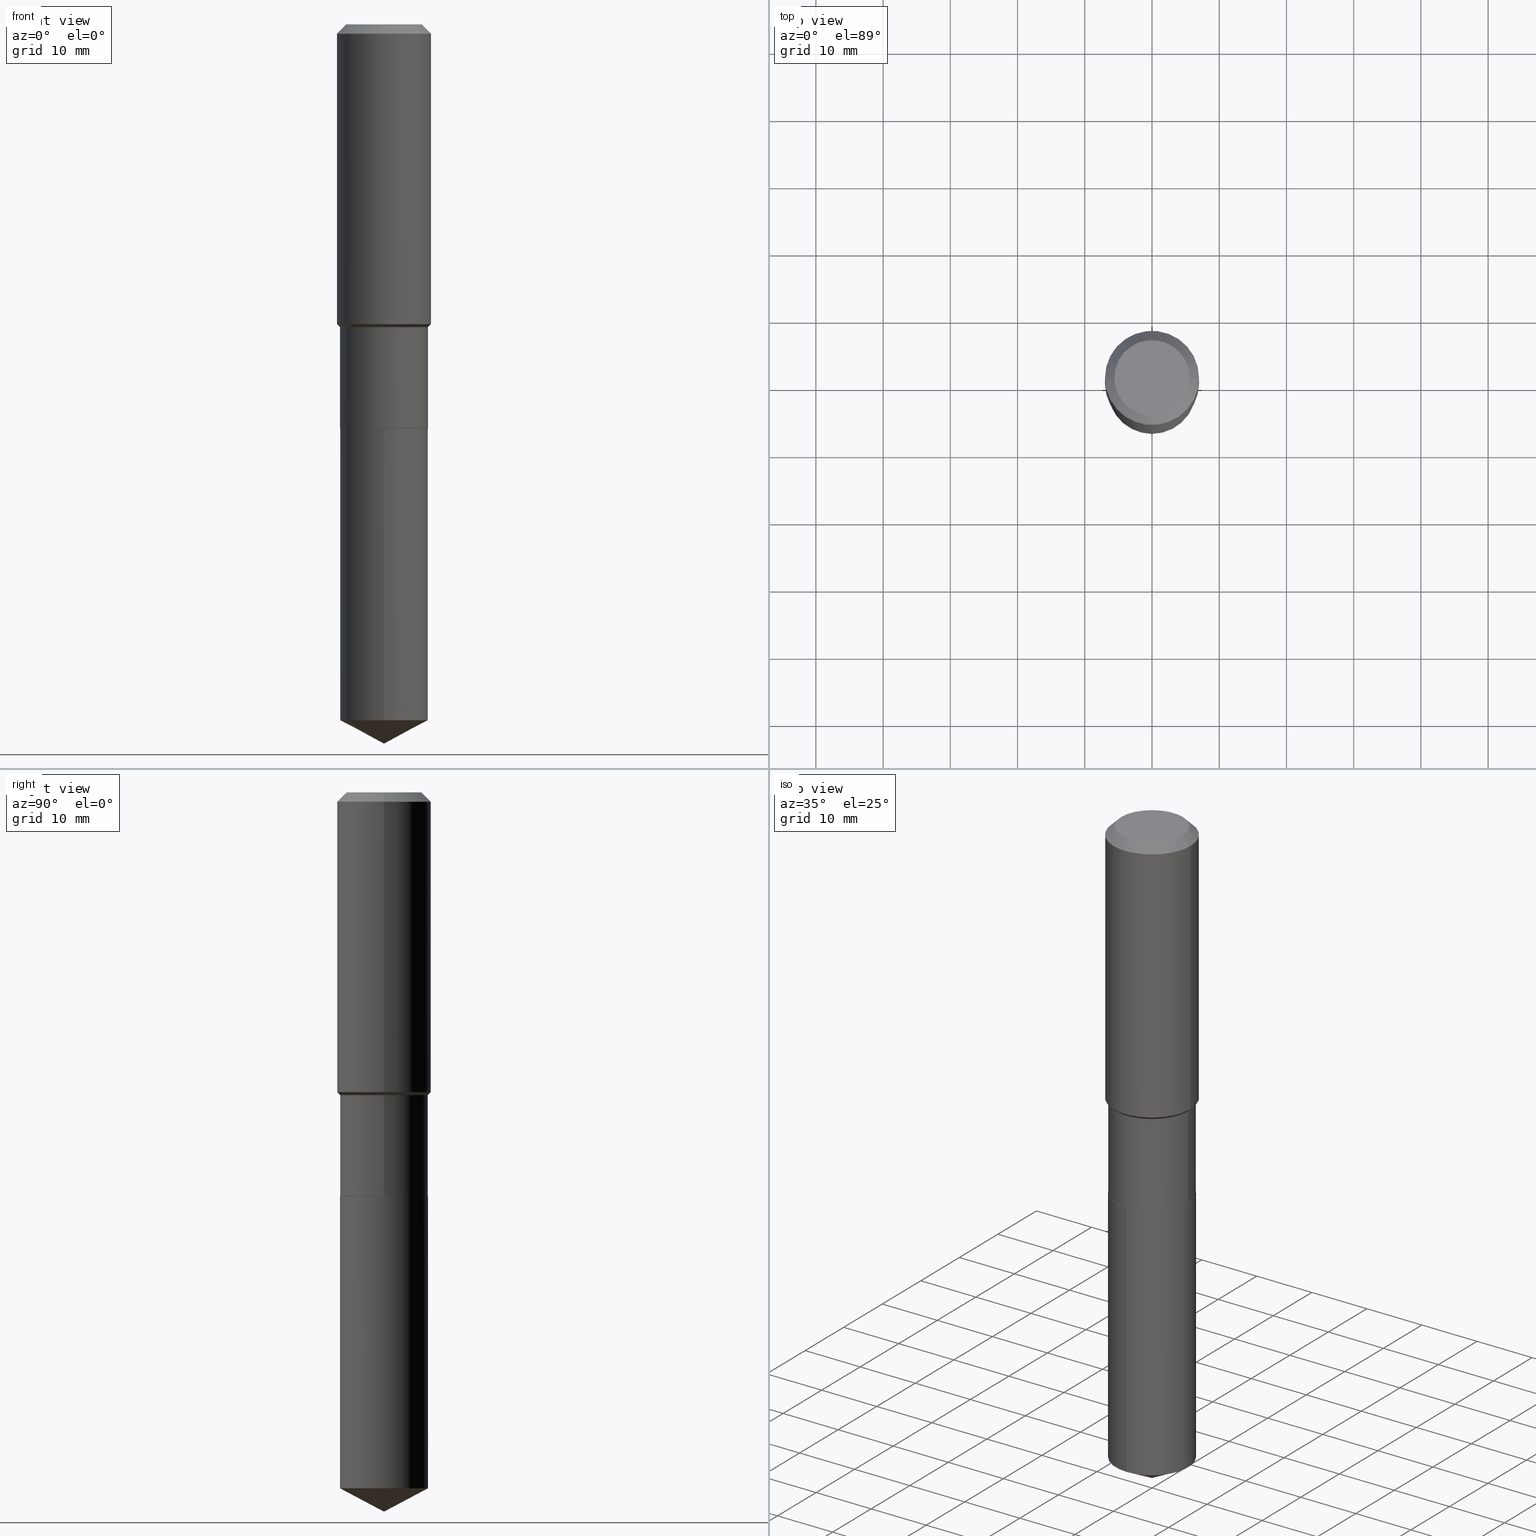
[diagram: canonical four-view strip — front | top / right | iso, engineering-drawing reading convention]
A machine part, canonical four-view strip (front | top / right | iso — engineering-drawing reading convention). The complete STEP part file that produces these views, byte-faithful:
ISO-10303-21;
HEADER;
FILE_DESCRIPTION (( 'STEP AP203' ),
    '1' );
FILE_NAME ('54629.STEP',
    '2024-04-24T15:16:39',
    ( '' ),
    ( '' ),
    'SwSTEP 2.0',
    'SolidWorks 2023',
    '' );
FILE_SCHEMA (( 'CONFIG_CONTROL_DESIGN' ));
ENDSEC;

DATA;
#1 = LINE ( 'NONE', #110, #404 ) ;
#2 = FACE_OUTER_BOUND ( 'NONE', #376, .T. ) ;
#3 = PERSON_AND_ORGANIZATION ( #445, #172 ) ;
#4 = FACE_OUTER_BOUND ( 'NONE', #333, .T. ) ;
#5 = CIRCLE ( 'NONE', #18, 0.2204800000000000093 ) ;
#6 = CALENDAR_DATE ( 2024, 24, 4 ) ;
#7 = ORIENTED_EDGE ( 'NONE', *, *, #134, .T. ) ;
#8 = CARTESIAN_POINT ( 'NONE',  ( 4.292531395496771171E-29, -6.128597194071374975E-15, -1.755300000000000304 ) ) ;
#9 = DIRECTION ( 'NONE',  ( -2.445468806185136597E-29, 3.491481338843145583E-15, 1.000000000000000000 ) ) ;
#10 = CONICAL_SURFACE ( 'NONE', #263, 0.2572999999999999732, 0.7853981633972775267 ) ;
#11 = CARTESIAN_POINT ( 'NONE',  ( 5.785979195434034596E-29, -8.260844847702884631E-15, -2.366000000000000547 ) ) ;
#12 = EDGE_CURVE ( 'NONE', #178, #260, #305, .T. ) ;
#13 = APPROVAL_DATE_TIME ( #52, #397 ) ;
#14 = CARTESIAN_POINT ( 'NONE',  ( 5.785979195434034596E-29, -8.260844847702884631E-15, -2.366000000000000547 ) ) ;
#15 = EDGE_CURVE ( 'NONE', #402, #178, #123, .T. ) ;
#16 = CARTESIAN_POINT ( 'NONE',  ( 5.784756461030941795E-29, -8.259099107033462339E-15, -2.365500000000000380 ) ) ;
#17 = AXIS2_PLACEMENT_3D ( 'NONE', #196, #355, #167 ) ;
#18 = AXIS2_PLACEMENT_3D ( 'NONE', #30, #303, #74 ) ;
#19 = ADVANCED_FACE ( 'NONE', ( #424 ), #64, .T. ) ;
#20 = DIRECTION ( 'NONE',  ( -2.438088387897960049E-29, 3.491481338843145188E-15, 1.000000000000000000 ) ) ;
#21 = ORIENTED_EDGE ( 'NONE', *, *, #382, .T. ) ;
#22 = DIRECTION ( 'NONE',  ( 6.273719981627760554E-15, 0.8829475928589289868, 0.4694715627858866425 ) ) ;
#23 = CARTESIAN_POINT ( 'NONE',  ( 1.831779172789595679E-15, 0.2577999999999917025, -2.366000000000000991 ) ) ;
#24 = EDGE_CURVE ( 'NONE', #67, #443, #81, .T. ) ;
#25 = VERTEX_POINT ( 'NONE', #186 ) ;
#26 = VECTOR ( 'NONE', #458, 39.37007874015748143 ) ;
#27 = VECTOR ( 'NONE', #61, 39.37007874015748143 ) ;
#28 = CARTESIAN_POINT ( 'NONE',  ( 0.000000000000000000, 0.000000000000000000, 0.000000000000000000 ) ) ;
#29 = ORIENTED_EDGE ( 'NONE', *, *, #375, .T. ) ;
#30 = CARTESIAN_POINT ( 'NONE',  ( -9.439721640706190018E-47, 1.347742071746724849E-32, 3.860086710912454339E-18 ) ) ;
#31 = EDGE_LOOP ( 'NONE', ( #371, #286, #40 ) ) ;
#32 = CYLINDRICAL_SURFACE ( 'NONE', #349, 0.2577999999999999736 ) ;
#33 = ORIENTED_EDGE ( 'NONE', *, *, #275, .T. ) ;
#34 = AXIS2_PLACEMENT_3D ( 'NONE', #16, #163, #206 ) ;
#35 = EDGE_CURVE ( 'NONE', #70, #157, #474, .T. ) ;
#36 = LINE ( 'NONE', #173, #247 ) ;
#37 = ORIENTED_EDGE ( 'NONE', *, *, #393, .F. ) ;
#38 = APPLICATION_PROTOCOL_DEFINITION ( 'international standard', 'config_control_design', 1994, #193 ) ;
#39 = ORIENTED_EDGE ( 'NONE', *, *, #12, .T. ) ;
#40 = ORIENTED_EDGE ( 'NONE', *, *, #453, .F. ) ;
#41 = APPROVAL_ROLE ( '' ) ;
#42 = CONICAL_SURFACE ( 'NONE', #17, 74.04434902938334062, 1.082104136236485381 ) ;
#43 = DIRECTION ( 'NONE',  ( 1.000000000000000000, -6.982962677686266711E-15, 0.000000000000000000 ) ) ;
#44 = LOCAL_TIME ( 11, 16, 39.00000000000000000, #118 ) ;
#45 = ORIENTED_EDGE ( 'NONE', *, *, #46, .F. ) ;
#46 = EDGE_CURVE ( 'NONE', #301, #25, #356, .T. ) ;
#47 = PERSON_AND_ORGANIZATION ( #445, #172 ) ;
#48 = CARTESIAN_POINT ( 'NONE',  ( 4.336060740246867168E-29, -6.190745561902783658E-15, -1.773100000000000565 ) ) ;
#49 = DATE_AND_TIME ( #129, #164 ) ;
#50 = DIRECTION ( 'NONE',  ( -2.445567243636616117E-29, 3.491340370809915190E-15, 1.000000000000000000 ) ) ;
#51 = AXIS2_PLACEMENT_3D ( 'NONE', #488, #441, #175 ) ;
#52 = DATE_AND_TIME ( #357, #59 ) ;
#53 = FACE_OUTER_BOUND ( 'NONE', #463, .T. ) ;
#54 = MANIFOLD_SOLID_BREP ( 'Body-Move/Copy2[1]', #394 ) ;
#55 = PERSON_AND_ORGANIZATION ( #445, #172 ) ;
#56 = CARTESIAN_POINT ( 'NONE',  ( -0.2572999999999999732, -6.429969161418035843E-15, -2.366000000000000547 ) ) ;
#57 = CARTESIAN_POINT ( 'NONE',  ( 1.030220065511256840E-28, -1.470762044607384763E-14, -4.212600000000000122 ) ) ;
#58 = CONICAL_SURFACE ( 'NONE', #221, 0.2756000000000000116, 0.7853981633974452814 ) ;
#59 = LOCAL_TIME ( 11, 16, 39.00000000000000000, #202 ) ;
#60 = CARTESIAN_POINT ( 'NONE',  ( -8.598021127879006181E-28, 1.227463913310365116E-13, 35.15747874015747954 ) ) ;
#61 = DIRECTION ( 'NONE',  ( 0.7071067811865453523, -7.319954787623248157E-15, -0.7071067811865496822 ) ) ;
#62 = FACE_OUTER_BOUND ( 'NONE', #373, .T. ) ;
#63 = ORIENTED_EDGE ( 'NONE', *, *, #411, .T. ) ;
#64 = CONICAL_SURFACE ( 'NONE', #228, 0.2577999999999999181, 0.7853981633974492782 ) ;
#65 =( GEOMETRIC_REPRESENTATION_CONTEXT ( 3 ) GLOBAL_UNCERTAINTY_ASSIGNED_CONTEXT ( ( #279 ) ) GLOBAL_UNIT_ASSIGNED_CONTEXT ( ( #454, #116, #386 ) ) REPRESENTATION_CONTEXT ( 'NONE', 'WORKASPACE' ) );
#66 = CARTESIAN_POINT ( 'NONE',  ( 5.785979195434034596E-29, -8.260844847702884631E-15, -2.366000000000000547 ) ) ;
#67 = VERTEX_POINT ( 'NONE', #234 ) ;
#68 = EDGE_CURVE ( 'NONE', #157, #70, #149, .T. ) ;
#69 = LINE ( 'NONE', #181, #297 ) ;
#70 = VERTEX_POINT ( 'NONE', #269 ) ;
#71 = DIRECTION ( 'NONE',  ( -0.7071067811865482389, 7.493145998870357316E-15, 0.7071067811865467956 ) ) ;
#72 = ORIENTED_EDGE ( 'NONE', *, *, #382, .F. ) ;
#73 = AXIS2_PLACEMENT_3D ( 'NONE', #159, #125, #128 ) ;
#74 = DIRECTION ( 'NONE',  ( 1.000000000000000000, -6.982962677686266711E-15, 4.876132675269083677E-29 ) ) ;
#75 = DIRECTION ( 'NONE',  ( 1.000000000000000000, -6.982962677686266711E-15, 0.000000000000000000 ) ) ;
#76 = APPROVAL_STATUS ( 'not_yet_approved' ) ;
#77 = DIRECTION ( 'NONE',  ( 1.000000000000000000, -6.982962677686267499E-15, 4.876176775795935793E-29 ) ) ;
#78 = CARTESIAN_POINT ( 'NONE',  ( 0.2577999999999999736, -1.005930688534098151E-14, -2.365500000000000380 ) ) ;
#79 = DIRECTION ( 'NONE',  ( -2.445468806185136597E-29, 3.491481338843145583E-15, 1.000000000000000000 ) ) ;
#80 = APPROVAL_STATUS ( 'not_yet_approved' ) ;
#81 = CIRCLE ( 'NONE', #343, 0.2577999999999999181 ) ;
#82 = CONICAL_SURFACE ( 'NONE', #414, 0.2572999999999999732, 0.7853981633972775267 ) ;
#83 = ORIENTED_EDGE ( 'NONE', *, *, #187, .F. ) ;
#84 = ADVANCED_FACE ( 'NONE', ( #184 ), #227, .T. ) ;
#85 = DIRECTION ( 'NONE',  ( 0.000000000000000000, 0.000000000000000000, 1.000000000000000000 ) ) ;
#86 = CARTESIAN_POINT ( 'NONE',  ( -0.2577999999999999181, 1.831779172789537697E-15, -1.268101466267714406E-29 ) ) ;
#87 = CC_DESIGN_PERSON_AND_ORGANIZATION_ASSIGNMENT ( #420, #226, ( #97 ) ) ;
#88 = CARTESIAN_POINT ( 'NONE',  ( -0.2578000000000000291, -5.393143161678585695E-15, -2.365500000000000380 ) ) ;
#89 = EDGE_CURVE ( 'NONE', #218, #67, #121, .T. ) ;
#90 = CARTESIAN_POINT ( 'NONE',  ( 0.2572999999999999732, -1.005756114467156079E-14, -2.366000000000000547 ) ) ;
#91 = VECTOR ( 'NONE', #189, 39.37007874015748143 ) ;
#92 = DIRECTION ( 'NONE',  ( -2.445567243636616397E-29, 3.491340370809915190E-15, 1.000000000000000000 ) ) ;
#93 = CARTESIAN_POINT ( 'NONE',  ( 5.785979195434034596E-29, -8.260844847702884631E-15, -2.366000000000000547 ) ) ;
#94 = DIRECTION ( 'NONE',  ( -2.445567243636616117E-29, 3.491340370809915190E-15, 1.000000000000000000 ) ) ;
#95 = DIMENSIONAL_EXPONENTS ( 1.000000000000000000, 0.000000000000000000, 0.000000000000000000, 0.000000000000000000, 0.000000000000000000, 0.000000000000000000, 0.000000000000000000 ) ;
#96 = AXIS2_PLACEMENT_3D ( 'NONE', #66, #177, #293 ) ;
#97 = PRODUCT ( '54629', '54629', '', ( #310 ) ) ;
#98 = CARTESIAN_POINT ( 'NONE',  ( -0.2577999999999999181, -4.358966389113245961E-15, -1.773100000000000565 ) ) ;
#99 = ORIENTED_EDGE ( 'NONE', *, *, #281, .T. ) ;
#100 = CARTESIAN_POINT ( 'NONE',  ( 0.000000000000000000, 0.000000000000000000, 0.000000000000000000 ) ) ;
#101 = ORIENTED_EDGE ( 'NONE', *, *, #486, .F. ) ;
#102 = LINE ( 'NONE', #23, #135 ) ;
#103 = EDGE_LOOP ( 'NONE', ( #39, #209, #448, #360 ) ) ;
#104 = AXIS2_PLACEMENT_3D ( 'NONE', #14, #50, #245 ) ;
#105 = DIRECTION ( 'NONE',  ( -2.445468806185136597E-29, 3.491481338843145583E-15, 1.000000000000000000 ) ) ;
#106 = APPROVAL ( #76, 'UNSPECIFIED' ) ;
#107 = ORIENTED_EDGE ( 'NONE', *, *, #453, .T. ) ;
#108 = CARTESIAN_POINT ( 'NONE',  ( 4.336060740246867168E-29, -6.190745561902783658E-15, -1.773100000000000565 ) ) ;
#109 = EDGE_LOOP ( 'NONE', ( #257, #289, #220, #363 ) ) ;
#110 = CARTESIAN_POINT ( 'NONE',  ( -0.2756000000000000116, 1.732054062573300039E-15, -0.05512000000000035621 ) ) ;
#111 = ORIENTED_EDGE ( 'NONE', *, *, #464, .T. ) ;
#112 = APPROVAL_ROLE ( '' ) ;
#113 = CIRCLE ( 'NONE', #313, 0.2577999999999999181 ) ;
#114 = EDGE_LOOP ( 'NONE', ( #162, #107, #413, #405 ) ) ;
#115 = CC_DESIGN_DATE_AND_TIME_ASSIGNMENT ( #377, #233, ( #183 ) ) ;
#116 =( NAMED_UNIT ( * ) PLANE_ANGLE_UNIT ( ) SI_UNIT ( $, .RADIAN. ) );
#117 = DIRECTION ( 'NONE',  ( 1.000000000000000000, -6.982962677686267499E-15, 0.000000000000000000 ) ) ;
#118 = COORDINATED_UNIVERSAL_TIME_OFFSET ( 5, 0, .BEHIND. ) ;
#119 = ORIENTED_EDGE ( 'NONE', *, *, #201, .T. ) ;
#120 = CIRCLE ( 'NONE', #214, 0.2204800000000000093 ) ;
#121 = LINE ( 'NONE', #86, #179 ) ;
#122 = COORDINATED_UNIVERSAL_TIME_OFFSET ( 5, 0, .BEHIND. ) ;
#123 = LINE ( 'NONE', #148, #26 ) ;
#124 = ADVANCED_FACE ( 'NONE', ( #2 ), #10, .T. ) ;
#125 = DIRECTION ( 'NONE',  ( 2.445468806185136597E-29, -3.491481338843145583E-15, -1.000000000000000000 ) ) ;
#126 = CARTESIAN_POINT ( 'NONE',  ( -0.2204800000000000093, 1.635828836874783961E-15, 3.860086710901350968E-18 ) ) ;
#127 = CONICAL_SURFACE ( 'NONE', #254, 74.04434902938334062, 1.082104136236485381 ) ;
#128 = DIRECTION ( 'NONE',  ( -1.000000000000000000, 6.982962677686269077E-15, 0.000000000000000000 ) ) ;
#129 = CALENDAR_DATE ( 2024, 24, 4 ) ;
#130 = LINE ( 'NONE', #276, #194 ) ;
#131 = ADVANCED_FACE ( 'NONE', ( #346 ), #58, .T. ) ;
#132 = CYLINDRICAL_SURFACE ( 'NONE', #104, 0.2577999999999999736 ) ;
#133 = CIRCLE ( 'NONE', #34, 0.2577999999999999736 ) ;
#134 = EDGE_CURVE ( 'NONE', #157, #274, #342, .T. ) ;
#135 = VECTOR ( 'NONE', #484, 39.37007874015748143 ) ;
#136 = DIRECTION ( 'NONE',  ( 1.000000000000000000, -6.982962677686266711E-15, 4.876132675269083677E-29 ) ) ;
#137 = ORIENTED_EDGE ( 'NONE', *, *, #317, .F. ) ;
#138 = ADVANCED_FACE ( 'NONE', ( #4 ), #345, .F. ) ;
#139 = FACE_OUTER_BOUND ( 'NONE', #399, .T. ) ;
#140 = DIRECTION ( 'NONE',  ( 1.000000000000000000, -6.982962677686267499E-15, 4.876176775795936353E-29 ) ) ;
#141 = ORIENTED_EDGE ( 'NONE', *, *, #225, .T. ) ;
#142 = AXIS2_PLACEMENT_3D ( 'NONE', #337, #398, #219 ) ;
#143 = CARTESIAN_POINT ( 'NONE',  ( 5.785979195434034596E-29, -8.260844847702884631E-15, -2.366000000000000547 ) ) ;
#144 = ORIENTED_EDGE ( 'NONE', *, *, #46, .T. ) ;
#145 = ORIENTED_EDGE ( 'NONE', *, *, #171, .F. ) ;
#146 = ADVANCED_FACE ( 'NONE', ( #322 ), #127, .T. ) ;
#147 = DIRECTION ( 'NONE',  ( 1.000000000000000000, 0.000000000000000000, 0.000000000000000000 ) ) ;
#148 = CARTESIAN_POINT ( 'NONE',  ( 1.030173076452320861E-28, -1.470828750680709365E-14, -4.212600000000000122 ) ) ;
#149 = CIRCLE ( 'NONE', #320, 0.2756000000000002337 ) ;
#150 = COORDINATED_UNIVERSAL_TIME_OFFSET ( 5, 0, .BEHIND. ) ;
#151 = AXIS2_PLACEMENT_3D ( 'NONE', #252, #403, #368 ) ;
#152 = ORIENTED_EDGE ( 'NONE', *, *, #12, .F. ) ;
#153 = DIRECTION ( 'NONE',  ( -2.445567243636616117E-29, 3.491340370809915190E-15, 1.000000000000000000 ) ) ;
#154 = CALENDAR_DATE ( 2024, 24, 4 ) ;
#155 = DIRECTION ( 'NONE',  ( -2.445468806185136597E-29, 3.491481338843145583E-15, 1.000000000000000000 ) ) ;
#156 = AXIS2_PLACEMENT_3D ( 'NONE', #266, #153, #273 ) ;
#157 = VERTEX_POINT ( 'NONE', #471 ) ;
#158 = PERSON_AND_ORGANIZATION ( #445, #172 ) ;
#159 = CARTESIAN_POINT ( 'NONE',  ( 1.347942405969256063E-30, -1.924504513970354330E-16, -0.05512000000000035621 ) ) ;
#160 = ADVANCED_FACE ( 'NONE', ( #323 ), #132, .T. ) ;
#161 = CARTESIAN_POINT ( 'NONE',  ( -0.2572999999999999732, -6.432618388592147044E-15, -2.366000000000000547 ) ) ;
#162 = ORIENTED_EDGE ( 'NONE', *, *, #302, .F. ) ;
#163 = DIRECTION ( 'NONE',  ( -2.445468806185136597E-29, 3.491481338843145583E-15, 1.000000000000000000 ) ) ;
#164 = LOCAL_TIME ( 11, 16, 39.00000000000000000, #122 ) ;
#165 = ADVANCED_FACE ( 'NONE', ( #316 ), #42, .T. ) ;
#166 = FACE_OUTER_BOUND ( 'NONE', #199, .T. ) ;
#167 = DIRECTION ( 'NONE',  ( -6.982962677686265133E-15, -1.000000000000000000, 3.541896320645570335E-15 ) ) ;
#168 = FACE_OUTER_BOUND ( 'NONE', #262, .T. ) ;
#169 = ORIENTED_EDGE ( 'NONE', *, *, #317, .T. ) ;
#170 = AXIS2_PLACEMENT_3D ( 'NONE', #429, #20, #388 ) ;
#171 = EDGE_CURVE ( 'NONE', #70, #418, #431, .T. ) ;
#172 = ORGANIZATION ( 'UNSPECIFIED', 'UNSPECIFIED', '' ) ;
#173 = CARTESIAN_POINT ( 'NONE',  ( 0.2577999999999999181, -7.990953340210302036E-15, -1.773100000000000565 ) ) ;
#174 = EDGE_LOOP ( 'NONE', ( #296, #63, #212, #466 ) ) ;
#175 = DIRECTION ( 'NONE',  ( 1.000000000000000000, -6.982962677686267499E-15, 4.876176775795936353E-29 ) ) ;
#176 = ORIENTED_EDGE ( 'NONE', *, *, #331, .T. ) ;
#177 = DIRECTION ( 'NONE',  ( -2.445567243636616117E-29, 3.491340370809915190E-15, 1.000000000000000000 ) ) ;
#178 = VERTEX_POINT ( 'NONE', #350 ) ;
#179 = VECTOR ( 'NONE', #232, 39.37007874015748143 ) ;
#180 = CC_DESIGN_APPROVAL ( #397, ( #485 ) ) ;
#181 = CARTESIAN_POINT ( 'NONE',  ( 0.2577999999999999181, -1.800207778307519167E-15, 1.257078372800191925E-29 ) ) ;
#182 = ORIENTED_EDGE ( 'NONE', *, *, #68, .F. ) ;
#183 = PRODUCT_DEFINITION ( 'UNKNOWN', '', #336, #470 ) ;
#184 = FACE_OUTER_BOUND ( 'NONE', #330, .T. ) ;
#185 = PERSON_AND_ORGANIZATION_ROLE ( 'creator' ) ;
#186 = CARTESIAN_POINT ( 'NONE',  ( 0.2572999999999999732, -1.005756114467156079E-14, -2.366000000000000547 ) ) ;
#187 = EDGE_CURVE ( 'NONE', #218, #477, #133, .T. ) ;
#188 = PERSON_AND_ORGANIZATION ( #445, #172 ) ;
#189 = DIRECTION ( 'NONE',  ( -2.445468806185136877E-29, 3.491481338843145188E-15, 1.000000000000000000 ) ) ;
#190 = DIRECTION ( 'NONE',  ( 1.000000000000000000, -6.982962677686265922E-15, 0.000000000000000000 ) ) ;
#191 = CALENDAR_DATE ( 2024, 24, 4 ) ;
#192 = CARTESIAN_POINT ( 'NONE',  ( 4.336060740246867168E-29, -6.190745561902783658E-15, -1.773100000000000565 ) ) ;
#193 = APPLICATION_CONTEXT ( 'configuration controlled 3d designs of mechanical parts and assemblies' ) ;
#194 = VECTOR ( 'NONE', #92, 39.37007874015748143 ) ;
#195 = AXIS2_PLACEMENT_3D ( 'NONE', #359, #473, #391 ) ;
#196 = CARTESIAN_POINT ( 'NONE',  ( -8.598021127879006181E-28, 1.227463913310365116E-13, 35.15747874015747954 ) ) ;
#197 = DIRECTION ( 'NONE',  ( -0.7071067811864267805, 7.493145998869918709E-15, 0.7071067811866682540 ) ) ;
#198 = CC_DESIGN_PERSON_AND_ORGANIZATION_ASSIGNMENT ( #158, #460, ( #485 ) ) ;
#199 = EDGE_LOOP ( 'NONE', ( #299, #111 ) ) ;
#200 = DIRECTION ( 'NONE',  ( -2.445468806185136877E-29, 3.491481338843145188E-15, 1.000000000000000000 ) ) ;
#201 = EDGE_CURVE ( 'NONE', #353, #369, #295, .T. ) ;
#202 = COORDINATED_UNIVERSAL_TIME_OFFSET ( 5, 0, .BEHIND. ) ;
#203 = PLANE ( 'NONE',  #240 ) ;
#204 = VECTOR ( 'NONE', #200, 39.37007874015748143 ) ;
#205 = DATE_TIME_ROLE ( 'classification_date' ) ;
#206 = DIRECTION ( 'NONE',  ( 1.000000000000000000, -6.982962677686264344E-15, 0.000000000000000000 ) ) ;
#207 = DIRECTION ( 'NONE',  ( 1.000000000000000000, -6.982962677686267499E-15, 4.876176775795935793E-29 ) ) ;
#208 = ADVANCED_FACE ( 'NONE', ( #462 ), #284, .T. ) ;
#209 = ORIENTED_EDGE ( 'NONE', *, *, #302, .T. ) ;
#210 = MANIFOLD_SOLID_BREP ( 'Body-Move/Copy2[2]', #467 ) ;
#211 = DIRECTION ( 'NONE',  ( -2.445468806185136597E-29, 3.491481338843145583E-15, 1.000000000000000000 ) ) ;
#212 = ORIENTED_EDGE ( 'NONE', *, *, #486, .T. ) ;
#213 = AXIS2_PLACEMENT_3D ( 'NONE', #11, #361, #425 ) ;
#214 = AXIS2_PLACEMENT_3D ( 'NONE', #409, #259, #136 ) ;
#215 = CARTESIAN_POINT ( 'NONE',  ( 5.785979195434034596E-29, -8.260844847702884631E-15, -2.366000000000000547 ) ) ;
#216 = VERTEX_POINT ( 'NONE', #126 ) ;
#217 = CARTESIAN_POINT ( 'NONE',  ( 4.336060740246867168E-29, -6.190745561902783658E-15, -1.773100000000000565 ) ) ;
#218 = VERTEX_POINT ( 'NONE', #88 ) ;
#219 = DIRECTION ( 'NONE',  ( 1.000000000000000000, -6.982962677686264344E-15, 0.000000000000000000 ) ) ;
#220 = ORIENTED_EDGE ( 'NONE', *, *, #393, .T. ) ;
#221 = AXIS2_PLACEMENT_3D ( 'NONE', #451, #224, #379 ) ;
#222 = ORIENTED_EDGE ( 'NONE', *, *, #35, .F. ) ;
#223 = PERSON_AND_ORGANIZATION ( #445, #172 ) ;
#224 = DIRECTION ( 'NONE',  ( 2.445468806185136597E-29, -3.491481338843145583E-15, -1.000000000000000000 ) ) ;
#225 = EDGE_CURVE ( 'NONE', #301, #218, #430, .T. ) ;
#226 = PERSON_AND_ORGANIZATION_ROLE ( 'design_owner' ) ;
#227 = CYLINDRICAL_SURFACE ( 'NONE', #229, 0.2756000000000001227 ) ;
#228 = AXIS2_PLACEMENT_3D ( 'NONE', #192, #308, #455 ) ;
#229 = AXIS2_PLACEMENT_3D ( 'NONE', #340, #155, #77 ) ;
#230 = DATE_AND_TIME ( #191, #321 ) ;
#231 = APPROVAL_PERSON_ORGANIZATION ( #47, #449, #112 ) ;
#232 = DIRECTION ( 'NONE',  ( -2.445468806185136877E-29, 3.491481338843145188E-15, 1.000000000000000000 ) ) ;
#233 = DATE_TIME_ROLE ( 'creation_date' ) ;
#234 = CARTESIAN_POINT ( 'NONE',  ( -0.2577999999999999181, -5.393143161678585695E-15, -1.773100000000000565 ) ) ;
#235 = EDGE_CURVE ( 'NONE', #25, #301, #348, .T. ) ;
#236 = DIRECTION ( 'NONE',  ( 1.000000000000000000, -6.982962677686266711E-15, 0.000000000000000000 ) ) ;
#237 = APPLICATION_CONTEXT ( 'configuration controlled 3d designs of mechanical parts and assemblies' ) ;
#238 = SECURITY_CLASSIFICATION_LEVEL ( 'unclassified' ) ;
#239 = CC_DESIGN_DATE_AND_TIME_ASSIGNMENT ( #49, #205, ( #485 ) ) ;
#240 = AXIS2_PLACEMENT_3D ( 'NONE', #324, #390, #242 ) ;
#241 = DIRECTION ( 'NONE',  ( -2.445468806185136597E-29, 3.491481338843145583E-15, 1.000000000000000000 ) ) ;
#242 = DIRECTION ( 'NONE',  ( -1.000000000000000000, 6.982962677686265922E-15, -4.876176775795935793E-29 ) ) ;
#243 = EDGE_CURVE ( 'NONE', #178, #353, #130, .T. ) ;
#244 = LINE ( 'NONE', #57, #365 ) ;
#245 = DIRECTION ( 'NONE',  ( -6.982962677686265922E-15, -1.000000000000000000, 3.179031800229941890E-15 ) ) ;
#246 = AXIS2_PLACEMENT_3D ( 'NONE', #8, #385, #416 ) ;
#247 = VECTOR ( 'NONE', #478, 39.37007874015748143 ) ;
#248 = CARTESIAN_POINT ( 'NONE',  ( 0.2756000000000000116, -2.083203699582869812E-15, -0.05512000000000035621 ) ) ;
#249 = PRODUCT_RELATED_PRODUCT_CATEGORY ( 'detail', '', ( #97 ) ) ;
#250 = LINE ( 'NONE', #98, #428 ) ;
#251 = EDGE_LOOP ( 'NONE', ( #29, #169, #222, #335 ) ) ;
#252 = CARTESIAN_POINT ( 'NONE',  ( 9.966738292112629474E-29, -1.422937957225190381E-14, -4.075525308517671697 ) ) ;
#253 = EDGE_LOOP ( 'NONE', ( #446, #440, #309, #311 ) ) ;
#254 = AXIS2_PLACEMENT_3D ( 'NONE', #60, #94, #280 ) ;
#255 = CC_DESIGN_APPROVAL ( #106, ( #183 ) ) ;
#256 = DIRECTION ( 'NONE',  ( 1.000000000000000000, -6.982962677686265922E-15, 0.000000000000000000 ) ) ;
#257 = ORIENTED_EDGE ( 'NONE', *, *, #89, .F. ) ;
#258 = EDGE_CURVE ( 'NONE', #402, #260, #244, .T. ) ;
#259 = DIRECTION ( 'NONE',  ( -2.445468806185136597E-29, 3.491481338843145583E-15, 1.000000000000000000 ) ) ;
#260 = VERTEX_POINT ( 'NONE', #282 ) ;
#261 = DIRECTION ( 'NONE',  ( -0.7071067811865453523, 2.468850131082234184E-15, -0.7071067811865496822 ) ) ;
#262 = EDGE_LOOP ( 'NONE', ( #137, #479, #319, #182 ) ) ;
#263 = AXIS2_PLACEMENT_3D ( 'NONE', #347, #9, #43 ) ;
#264 = AXIS2_PLACEMENT_3D ( 'NONE', #28, #481, #140 ) ;
#265 = COORDINATED_UNIVERSAL_TIME_OFFSET ( 5, 0, .BEHIND. ) ;
#266 = CARTESIAN_POINT ( 'NONE',  ( 9.966738292112629474E-29, -1.422937957225190381E-14, -4.075525308517671697 ) ) ;
#267 = APPLICATION_PROTOCOL_DEFINITION ( 'international standard', 'config_control_design', 1994, #237 ) ;
#268 = CC_DESIGN_PERSON_AND_ORGANIZATION_ASSIGNMENT ( #188, #450, ( #183 ) ) ;
#269 = CARTESIAN_POINT ( 'NONE',  ( 0.2756000000000002337, -8.053101708041710718E-15, -1.755300000000000304 ) ) ;
#270 = CARTESIAN_POINT ( 'NONE',  ( 0.2204800000000000093, -1.797903149065768707E-15, 3.860086710924123164E-18 ) ) ;
#271 = ORIENTED_EDGE ( 'NONE', *, *, #35, .T. ) ;
#272 = AXIS2_PLACEMENT_3D ( 'NONE', #300, #384, #380 ) ;
#273 = DIRECTION ( 'NONE',  ( -6.982962677686265922E-15, -1.000000000000000000, 4.238709066973255853E-15 ) ) ;
#274 = VERTEX_POINT ( 'NONE', #396 ) ;
#275 = EDGE_CURVE ( 'NONE', #25, #477, #426, .T. ) ;
#276 = CARTESIAN_POINT ( 'NONE',  ( -1.800207778307461580E-15, -0.2578000000000082448, -2.365999999999999659 ) ) ;
#277 = CIRCLE ( 'NONE', #96, 0.2577999999999999736 ) ;
#278 = DIRECTION ( 'NONE',  ( 0.7071067811864267805, -2.468850131080992517E-15, 0.7071067811866682540 ) ) ;
#279 = UNCERTAINTY_MEASURE_WITH_UNIT (LENGTH_MEASURE( 1.000000000000000082E-05 ), #454, 'distance_accuracy_value', 'NONE');
#280 = DIRECTION ( 'NONE',  ( -6.982962677686265133E-15, -1.000000000000000000, 3.541896320645570335E-15 ) ) ;
#281 = EDGE_CURVE ( 'NONE', #274, #418, #327, .T. ) ;
#282 = CARTESIAN_POINT ( 'NONE',  ( 1.831779172789638277E-15, 0.2577999999999858183, -4.075525308517672585 ) ) ;
#283 = FACE_OUTER_BOUND ( 'NONE', #253, .T. ) ;
#284 = CONICAL_SURFACE ( 'NONE', #73, 0.2756000000000000116, 0.7853981633974452814 ) ;
#285 = AXIS2_PLACEMENT_3D ( 'NONE', #100, #400, #207 ) ;
#286 = ORIENTED_EDGE ( 'NONE', *, *, #15, .T. ) ;
#287 = ADVANCED_FACE ( 'NONE', ( #166 ), #203, .F. ) ;
#288 = CARTESIAN_POINT ( 'NONE',  ( 1.831779172789637883E-15, 0.2577999999999917025, -2.366000000000000991 ) ) ;
#289 = ORIENTED_EDGE ( 'NONE', *, *, #187, .T. ) ;
#290 = CC_DESIGN_PERSON_AND_ORGANIZATION_ASSIGNMENT ( #3, #307, ( #336 ) ) ;
#291 = DIRECTION ( 'NONE',  ( 1.000000000000000000, -6.982962677686266711E-15, 0.000000000000000000 ) ) ;
#292 = ORIENTED_EDGE ( 'NONE', *, *, #258, .T. ) ;
#293 = DIRECTION ( 'NONE',  ( -6.982962677686265922E-15, -1.000000000000000000, 3.179031800229941890E-15 ) ) ;
#294 = ADVANCED_FACE ( 'NONE', ( #53 ), #352, .F. ) ;
#295 = CIRCLE ( 'NONE', #213, 0.2577999999999999736 ) ;
#296 = ORIENTED_EDGE ( 'NONE', *, *, #464, .F. ) ;
#297 = VECTOR ( 'NONE', #370, 39.37007874015748143 ) ;
#298 = CARTESIAN_POINT ( 'NONE',  ( -1.800207778307461580E-15, -0.2578000000000082448, -2.365999999999999659 ) ) ;
#299 = ORIENTED_EDGE ( 'NONE', *, *, #325, .T. ) ;
#300 = CARTESIAN_POINT ( 'NONE',  ( 1.347942405969256063E-30, -1.924504513970354330E-16, -0.05512000000000035621 ) ) ;
#301 = VERTEX_POINT ( 'NONE', #56 ) ;
#302 = EDGE_CURVE ( 'NONE', #260, #369, #102, .T. ) ;
#303 = DIRECTION ( 'NONE',  ( -2.445468806185136597E-29, 3.491481338843145583E-15, 1.000000000000000000 ) ) ;
#304 = DIRECTION ( 'NONE',  ( -2.445468806185136597E-29, 3.491481338843145583E-15, 1.000000000000000000 ) ) ;
#305 = CIRCLE ( 'NONE', #156, 0.2577999999999999736 ) ;
#306 = CIRCLE ( 'NONE', #272, 0.2756000000000000116 ) ;
#307 = PERSON_AND_ORGANIZATION_ROLE ( 'design_supplier' ) ;
#308 = DIRECTION ( 'NONE',  ( -2.445468806185136597E-29, 3.491481338843145583E-15, 1.000000000000000000 ) ) ;
#309 = ORIENTED_EDGE ( 'NONE', *, *, #171, .T. ) ;
#310 = MECHANICAL_CONTEXT ( 'NONE', #237, 'mechanical' ) ;
#311 = ORIENTED_EDGE ( 'NONE', *, *, #281, .F. ) ;
#312 = EDGE_CURVE ( 'NONE', #443, #70, #36, .T. ) ;
#313 = AXIS2_PLACEMENT_3D ( 'NONE', #217, #362, #256 ) ;
#314 = CARTESIAN_POINT ( 'NONE',  ( 5.785979195434034596E-29, -8.260844847702884631E-15, -2.366000000000000547 ) ) ;
#315 = SHAPE_DEFINITION_REPRESENTATION ( #480, #406 ) ;
#316 = FACE_OUTER_BOUND ( 'NONE', #31, .T. ) ;
#317 = EDGE_CURVE ( 'NONE', #67, #157, #250, .T. ) ;
#318 = DIRECTION ( 'NONE',  ( -2.445468806185136597E-29, 3.491481338843145583E-15, 1.000000000000000000 ) ) ;
#319 = ORIENTED_EDGE ( 'NONE', *, *, #312, .T. ) ;
#320 = AXIS2_PLACEMENT_3D ( 'NONE', #457, #79, #117 ) ;
#321 = LOCAL_TIME ( 11, 16, 39.00000000000000000, #265 ) ;
#322 = FACE_OUTER_BOUND ( 'NONE', #408, .T. ) ;
#323 = FACE_OUTER_BOUND ( 'NONE', #114, .T. ) ;
#324 = CARTESIAN_POINT ( 'NONE',  ( -4.719860820353095009E-47, 6.738710358733624243E-33, 1.930043355456227170E-18 ) ) ;
#325 = EDGE_CURVE ( 'NONE', #216, #482, #120, .T. ) ;
#326 = FACE_OUTER_BOUND ( 'NONE', #109, .T. ) ;
#327 = CIRCLE ( 'NONE', #344, 0.2756000000000000116 ) ;
#328 = ORIENTED_EDGE ( 'NONE', *, *, #235, .F. ) ;
#329 = CYLINDRICAL_SURFACE ( 'NONE', #285, 0.2756000000000001227 ) ;
#330 = EDGE_LOOP ( 'NONE', ( #271, #7, #101, #145 ) ) ;
#331 = EDGE_CURVE ( 'NONE', #369, #353, #277, .T. ) ;
#332 = DIRECTION ( 'NONE',  ( 1.000000000000000000, -6.982962677686265922E-15, 0.000000000000000000 ) ) ;
#333 = EDGE_LOOP ( 'NONE', ( #328, #45 ) ) ;
#334 = DIRECTION ( 'NONE',  ( -2.445567243636616117E-29, 3.491340370809915190E-15, 1.000000000000000000 ) ) ;
#335 = ORIENTED_EDGE ( 'NONE', *, *, #312, .F. ) ;
#336 = PRODUCT_DEFINITION_FORMATION_WITH_SPECIFIED_SOURCE ( 'ANY', '', #97, .NOT_KNOWN. ) ;
#337 = CARTESIAN_POINT ( 'NONE',  ( 5.784756461030941795E-29, -8.259099107033462339E-15, -2.365500000000000380 ) ) ;
#338 = ORIENTED_EDGE ( 'NONE', *, *, #225, .F. ) ;
#339 = PERSON_AND_ORGANIZATION ( #445, #172 ) ;
#340 = CARTESIAN_POINT ( 'NONE',  ( 0.000000000000000000, 0.000000000000000000, 0.000000000000000000 ) ) ;
#341 = DATE_AND_TIME ( #154, #374 ) ;
#342 = LINE ( 'NONE', #381, #91 ) ;
#343 = AXIS2_PLACEMENT_3D ( 'NONE', #48, #304, #190 ) ;
#344 = AXIS2_PLACEMENT_3D ( 'NONE', #472, #241, #392 ) ;
#345 = PLANE ( 'NONE',  #170 ) ;
#346 = FACE_OUTER_BOUND ( 'NONE', #174, .T. ) ;
#347 = CARTESIAN_POINT ( 'NONE',  ( 5.785979195434034596E-29, -8.260844847702884631E-15, -2.366000000000000547 ) ) ;
#348 = CIRCLE ( 'NONE', #412, 0.2572999999999999732 ) ;
#349 = AXIS2_PLACEMENT_3D ( 'NONE', #215, #334, #444 ) ;
#350 = CARTESIAN_POINT ( 'NONE',  ( -1.800207778307420165E-15, -0.2578000000000142955, -4.075525308517669920 ) ) ;
#351 = ADVANCED_FACE ( 'NONE', ( #139 ), #476, .T. ) ;
#352 = PLANE ( 'NONE',  #195 ) ;
#353 = VERTEX_POINT ( 'NONE', #298 ) ;
#354 = APPROVAL_ROLE ( '' ) ;
#355 = DIRECTION ( 'NONE',  ( -2.445567243636616117E-29, 3.491340370809915190E-15, 1.000000000000000000 ) ) ;
#356 = CIRCLE ( 'NONE', #483, 0.2572999999999999732 ) ;
#357 = CALENDAR_DATE ( 2024, 24, 4 ) ;
#358 = APPROVAL_PERSON_ORGANIZATION ( #339, #106, #41 ) ;
#359 = CARTESIAN_POINT ( 'NONE',  ( 5.785979195434034596E-29, -8.260844847702884631E-15, -2.366000000000000547 ) ) ;
#360 = ORIENTED_EDGE ( 'NONE', *, *, #243, .F. ) ;
#361 = DIRECTION ( 'NONE',  ( -2.445567243636616117E-29, 3.491340370809915190E-15, 1.000000000000000000 ) ) ;
#362 = DIRECTION ( 'NONE',  ( -2.445468806185136597E-29, 3.491481338843145583E-15, 1.000000000000000000 ) ) ;
#363 = ORIENTED_EDGE ( 'NONE', *, *, #24, .F. ) ;
#364 = CYLINDRICAL_SURFACE ( 'NONE', #264, 0.2577999999999999181 ) ;
#365 = VECTOR ( 'NONE', #22, 39.37007874015748854 ) ;
#366 = EDGE_LOOP ( 'NONE', ( #410, #438, #421, #99 ) ) ;
#367 = ADVANCED_FACE ( 'NONE', ( #62 ), #82, .T. ) ;
#368 = DIRECTION ( 'NONE',  ( -6.982962677686265922E-15, -1.000000000000000000, 4.238709066973255853E-15 ) ) ;
#369 = VERTEX_POINT ( 'NONE', #288 ) ;
#370 = DIRECTION ( 'NONE',  ( -2.445468806185136877E-29, 3.491481338843145188E-15, 1.000000000000000000 ) ) ;
#371 = ORIENTED_EDGE ( 'NONE', *, *, #258, .F. ) ;
#372 = CARTESIAN_POINT ( 'NONE',  ( 1.030219657054360942E-28, -1.470762044607384763E-14, -4.212600000000000122 ) ) ;
#373 = EDGE_LOOP ( 'NONE', ( #435, #141, #72, #427 ) ) ;
#374 = LOCAL_TIME ( 11, 16, 39.00000000000000000, #150 ) ;
#375 = EDGE_CURVE ( 'NONE', #443, #67, #113, .T. ) ;
#376 = EDGE_LOOP ( 'NONE', ( #338, #144, #33, #83 ) ) ;
#377 = DATE_AND_TIME ( #6, #44 ) ;
#378 = ADVANCED_FACE ( 'NONE', ( #407 ), #32, .T. ) ;
#379 = DIRECTION ( 'NONE',  ( -1.000000000000000000, 6.982962677686269077E-15, 0.000000000000000000 ) ) ;
#380 = DIRECTION ( 'NONE',  ( 1.000000000000000000, -6.982962677686265922E-15, 0.000000000000000000 ) ) ;
#381 = CARTESIAN_POINT ( 'NONE',  ( -0.2756000000000001227, 1.958255779754836984E-15, -1.355658510874252567E-29 ) ) ;
#382 = EDGE_CURVE ( 'NONE', #477, #218, #395, .T. ) ;
#383 = CC_DESIGN_APPROVAL ( #449, ( #336 ) ) ;
#384 = DIRECTION ( 'NONE',  ( -2.445468806185136597E-29, 3.491481338843145583E-15, 1.000000000000000000 ) ) ;
#385 = DIRECTION ( 'NONE',  ( -2.445468806185136597E-29, 3.491481338843145583E-15, 1.000000000000000000 ) ) ;
#386 =( NAMED_UNIT ( * ) SI_UNIT ( $, .STERADIAN. ) SOLID_ANGLE_UNIT ( ) );
#387 = ORIENTED_EDGE ( 'NONE', *, *, #89, .T. ) ;
#388 = DIRECTION ( 'NONE',  ( 1.000000000000000000, -6.982962677686265922E-15, 4.876176775795935793E-29 ) ) ;
#389 = APPROVAL_STATUS ( 'not_yet_approved' ) ;
#390 = DIRECTION ( 'NONE',  ( 2.438088387897960049E-29, -3.491481338843145188E-15, -1.000000000000000000 ) ) ;
#391 = DIRECTION ( 'NONE',  ( 6.982962677686265922E-15, 1.000000000000000000, -3.491340370809915190E-15 ) ) ;
#392 = DIRECTION ( 'NONE',  ( 1.000000000000000000, -6.982962677686265922E-15, 0.000000000000000000 ) ) ;
#393 = EDGE_CURVE ( 'NONE', #477, #443, #69, .T. ) ;
#394 = CLOSED_SHELL ( 'NONE', ( #378, #146, #165, #160, #294 ) ) ;
#395 = CIRCLE ( 'NONE', #142, 0.2577999999999999736 ) ;
#396 = CARTESIAN_POINT ( 'NONE',  ( -0.2756000000000000116, -1.202268042979367764E-15, -0.05512000000000035621 ) ) ;
#397 = APPROVAL ( #389, 'UNSPECIFIED' ) ;
#398 = DIRECTION ( 'NONE',  ( -2.445468806185136597E-29, 3.491481338843145583E-15, 1.000000000000000000 ) ) ;
#399 = EDGE_LOOP ( 'NONE', ( #21, #387, #487, #37 ) ) ;
#400 = DIRECTION ( 'NONE',  ( -2.445468806185136597E-29, 3.491481338843145583E-15, 1.000000000000000000 ) ) ;
#401 = ADVANCED_FACE ( 'NONE', ( #168 ), #422, .T. ) ;
#402 = VERTEX_POINT ( 'NONE', #372 ) ;
#403 = DIRECTION ( 'NONE',  ( -2.445567243636616117E-29, 3.491340370809915190E-15, 1.000000000000000000 ) ) ;
#404 = VECTOR ( 'NONE', #261, 39.37007874015748143 ) ;
#405 = ORIENTED_EDGE ( 'NONE', *, *, #331, .F. ) ;
#406 = ADVANCED_BREP_SHAPE_REPRESENTATION ( '54629', ( #54, #210, #468 ), #65 ) ;
#407 = FACE_OUTER_BOUND ( 'NONE', #103, .T. ) ;
#408 = EDGE_LOOP ( 'NONE', ( #490, #292, #152 ) ) ;
#409 = CARTESIAN_POINT ( 'NONE',  ( -9.439721640706190018E-47, 1.347742071746724849E-32, 3.860086710912454339E-18 ) ) ;
#410 = ORIENTED_EDGE ( 'NONE', *, *, #411, .F. ) ;
#411 = EDGE_CURVE ( 'NONE', #482, #418, #437, .T. ) ;
#412 = AXIS2_PLACEMENT_3D ( 'NONE', #93, #318, #236 ) ;
#413 = ORIENTED_EDGE ( 'NONE', *, *, #243, .T. ) ;
#414 = AXIS2_PLACEMENT_3D ( 'NONE', #143, #105, #291 ) ;
#415 = APPROVAL_DATE_TIME ( #230, #449 ) ;
#416 = DIRECTION ( 'NONE',  ( 1.000000000000000000, -6.982962677686267499E-15, 0.000000000000000000 ) ) ;
#417 = APPROVAL_DATE_TIME ( #341, #106 ) ;
#418 = VERTEX_POINT ( 'NONE', #434 ) ;
#419 = ADVANCED_FACE ( 'NONE', ( #283 ), #329, .T. ) ;
#420 = PERSON_AND_ORGANIZATION ( #445, #172 ) ;
#421 = ORIENTED_EDGE ( 'NONE', *, *, #469, .T. ) ;
#422 = CONICAL_SURFACE ( 'NONE', #433, 0.2577999999999999181, 0.7853981633974492782 ) ;
#423 = CARTESIAN_POINT ( 'NONE',  ( 0.000000000000000000, 0.000000000000000000, 0.000000000000000000 ) ) ;
#424 = FACE_OUTER_BOUND ( 'NONE', #251, .T. ) ;
#425 = DIRECTION ( 'NONE',  ( -6.982962677686265922E-15, -1.000000000000000000, 3.179031800229941890E-15 ) ) ;
#426 = LINE ( 'NONE', #90, #452 ) ;
#427 = ORIENTED_EDGE ( 'NONE', *, *, #275, .F. ) ;
#428 = VECTOR ( 'NONE', #71, 39.37007874015748143 ) ;
#429 = CARTESIAN_POINT ( 'NONE',  ( 4.031811109684418189E-29, -1.077291338754340070E-14, -2.366000000000000547 ) ) ;
#430 = LINE ( 'NONE', #161, #432 ) ;
#431 = LINE ( 'NONE', #465, #204 ) ;
#432 = VECTOR ( 'NONE', #197, 39.37007874015748143 ) ;
#433 = AXIS2_PLACEMENT_3D ( 'NONE', #108, #211, #332 ) ;
#434 = CARTESIAN_POINT ( 'NONE',  ( 0.2756000000000000116, -2.116954965367370658E-15, -0.05512000000000035621 ) ) ;
#435 = ORIENTED_EDGE ( 'NONE', *, *, #235, .T. ) ;
#436 = ADVANCED_FACE ( 'NONE', ( #326 ), #364, .T. ) ;
#437 = LINE ( 'NONE', #248, #27 ) ;
#438 = ORIENTED_EDGE ( 'NONE', *, *, #325, .F. ) ;
#439 = CARTESIAN_POINT ( 'NONE',  ( 0.2577999999999999181, -7.990953340210302036E-15, -1.773100000000000565 ) ) ;
#440 = ORIENTED_EDGE ( 'NONE', *, *, #68, .T. ) ;
#441 = DIRECTION ( 'NONE',  ( -2.445468806185136597E-29, 3.491481338843145583E-15, 1.000000000000000000 ) ) ;
#442 = APPROVAL_PERSON_ORGANIZATION ( #55, #397, #354 ) ;
#443 = VERTEX_POINT ( 'NONE', #439 ) ;
#444 = DIRECTION ( 'NONE',  ( -6.982962677686265922E-15, -1.000000000000000000, 3.179031800229941890E-15 ) ) ;
#445 = PERSON ( 'UNSPECIFIED', 'UNSPECIFIED', 'UNSPECIFIED', ('UNSPECIFIED'), ('UNSPECIFIED'), ('UNSPECIFIED') ) ;
#446 = ORIENTED_EDGE ( 'NONE', *, *, #134, .F. ) ;
#447 = LENGTH_MEASURE_WITH_UNIT ( LENGTH_MEASURE( 0.02539999999999999897 ), #456 );
#448 = ORIENTED_EDGE ( 'NONE', *, *, #201, .F. ) ;
#449 = APPROVAL ( #80, 'UNSPECIFIED' ) ;
#450 = PERSON_AND_ORGANIZATION_ROLE ( 'creator' ) ;
#451 = CARTESIAN_POINT ( 'NONE',  ( 1.347942405969256063E-30, -1.924504513970354330E-16, -0.05512000000000035621 ) ) ;
#452 = VECTOR ( 'NONE', #278, 39.37007874015748143 ) ;
#453 = EDGE_CURVE ( 'NONE', #260, #178, #475, .T. ) ;
#454 =( CONVERSION_BASED_UNIT ( 'INCH', #447 ) LENGTH_UNIT ( ) NAMED_UNIT ( #95 ) );
#455 = DIRECTION ( 'NONE',  ( 1.000000000000000000, -6.982962677686265922E-15, 0.000000000000000000 ) ) ;
#456 =( LENGTH_UNIT ( ) NAMED_UNIT ( * ) SI_UNIT ( $, .METRE. ) );
#457 = CARTESIAN_POINT ( 'NONE',  ( 4.292531395496771171E-29, -6.128597194071374975E-15, -1.755300000000000304 ) ) ;
#458 = DIRECTION ( 'NONE',  ( -6.165590087286829718E-15, -0.8829475928589257672, 0.4694715627858929707 ) ) ;
#459 = CC_DESIGN_SECURITY_CLASSIFICATION ( #485, ( #336 ) ) ;
#460 = PERSON_AND_ORGANIZATION_ROLE ( 'classification_officer' ) ;
#461 = DIRECTION ( 'NONE',  ( -2.445468806185136597E-29, 3.491481338843145583E-15, 1.000000000000000000 ) ) ;
#462 = FACE_OUTER_BOUND ( 'NONE', #366, .T. ) ;
#463 = EDGE_LOOP ( 'NONE', ( #119, #176 ) ) ;
#464 = EDGE_CURVE ( 'NONE', #482, #216, #5, .T. ) ;
#465 = CARTESIAN_POINT ( 'NONE',  ( 0.2756000000000001227, -1.924504513970336137E-15, 1.343874319409360548E-29 ) ) ;
#466 = ORIENTED_EDGE ( 'NONE', *, *, #469, .F. ) ;
#467 = CLOSED_SHELL ( 'NONE', ( #367, #131, #84, #19, #351, #436, #401, #419, #208, #287, #138, #124 ) ) ;
#468 = AXIS2_PLACEMENT_3D ( 'NONE', #423, #85, #147 ) ;
#469 = EDGE_CURVE ( 'NONE', #216, #274, #1, .T. ) ;
#470 = DESIGN_CONTEXT ( 'detailed design', #193, 'design' ) ;
#471 = CARTESIAN_POINT ( 'NONE',  ( -0.2756000000000002337, -4.170341414316536808E-15, -1.755300000000000304 ) ) ;
#472 = CARTESIAN_POINT ( 'NONE',  ( 1.347942405969256063E-30, -1.924504513970354330E-16, -0.05512000000000035621 ) ) ;
#473 = DIRECTION ( 'NONE',  ( 2.445567243636615837E-29, -3.491340370809915190E-15, -1.000000000000000000 ) ) ;
#474 = CIRCLE ( 'NONE', #246, 0.2756000000000002337 ) ;
#475 = CIRCLE ( 'NONE', #151, 0.2577999999999999736 ) ;
#476 = CYLINDRICAL_SURFACE ( 'NONE', #51, 0.2577999999999999181 ) ;
#477 = VERTEX_POINT ( 'NONE', #78 ) ;
#478 = DIRECTION ( 'NONE',  ( 0.7071067811865482389, -2.468850131082264555E-15, 0.7071067811865467956 ) ) ;
#479 = ORIENTED_EDGE ( 'NONE', *, *, #24, .T. ) ;
#480 = PRODUCT_DEFINITION_SHAPE ( 'NONE', 'NONE',  #183 ) ;
#481 = DIRECTION ( 'NONE',  ( -2.445468806185136597E-29, 3.491481338843145583E-15, 1.000000000000000000 ) ) ;
#482 = VERTEX_POINT ( 'NONE', #270 ) ;
#483 = AXIS2_PLACEMENT_3D ( 'NONE', #314, #461, #75 ) ;
#484 = DIRECTION ( 'NONE',  ( -2.445567243636616397E-29, 3.491340370809915190E-15, 1.000000000000000000 ) ) ;
#485 = SECURITY_CLASSIFICATION ( '', '', #238 ) ;
#486 = EDGE_CURVE ( 'NONE', #418, #274, #306, .T. ) ;
#487 = ORIENTED_EDGE ( 'NONE', *, *, #375, .F. ) ;
#488 = CARTESIAN_POINT ( 'NONE',  ( 0.000000000000000000, 0.000000000000000000, 0.000000000000000000 ) ) ;
#489 = CC_DESIGN_PERSON_AND_ORGANIZATION_ASSIGNMENT ( #223, #185, ( #336 ) ) ;
#490 = ORIENTED_EDGE ( 'NONE', *, *, #15, .F. ) ;
ENDSEC;
END-ISO-10303-21;
